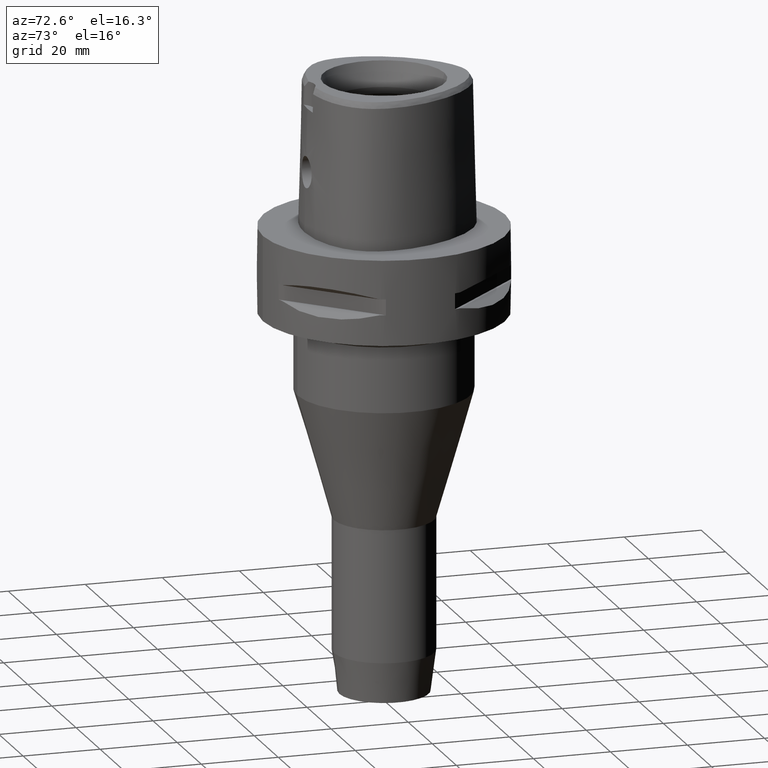
[diagram: clean part render]
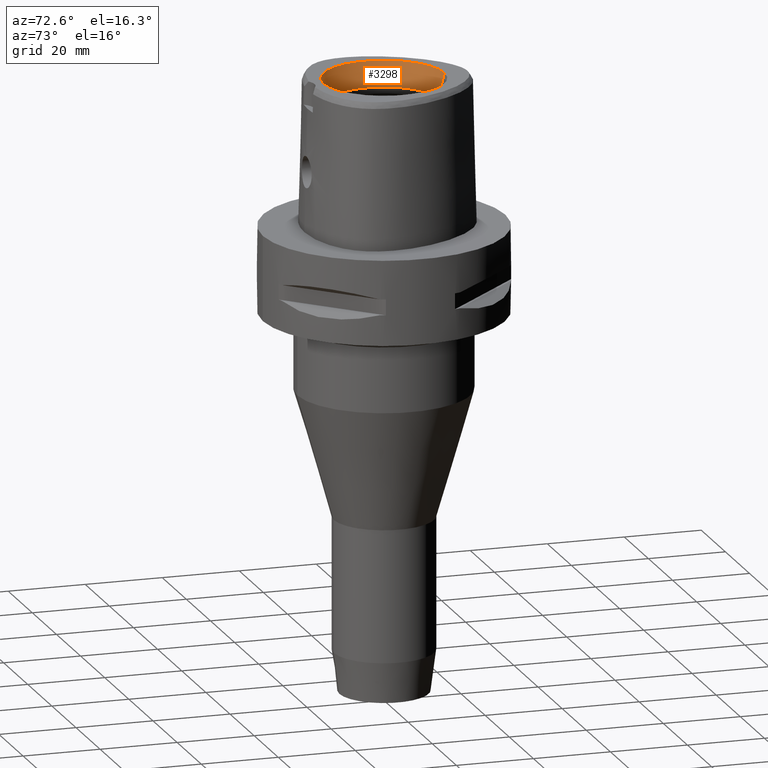
[diagram: same view with one face highlighted and labeled with its STEP entity id]
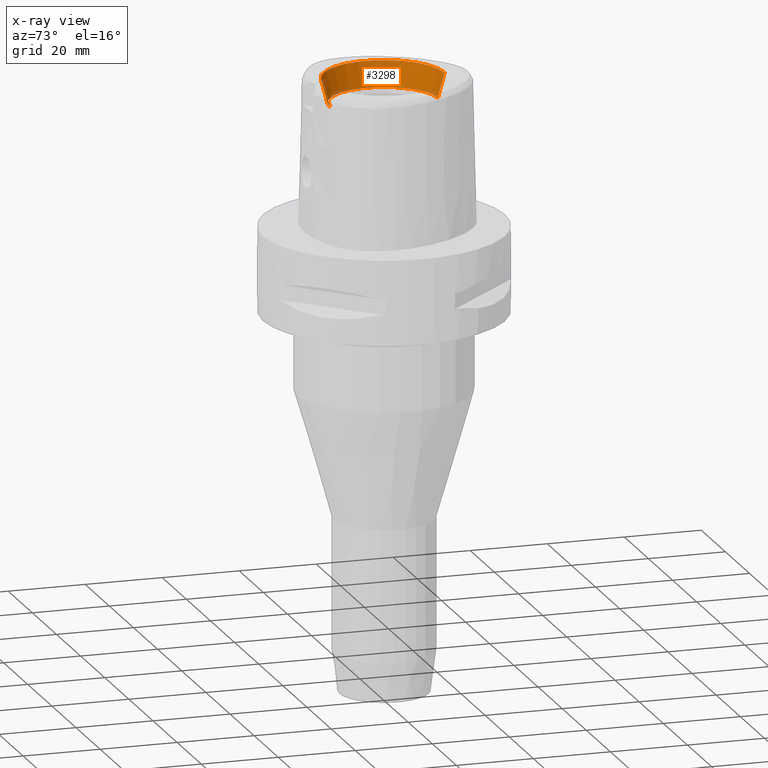
[diagram: x-ray of the same camera — body ghosted, the highlighted face saturated]
A machine part, auxiliary view. The second image highlights one B-rep face of the part: STEP entity #3298.
The next image is the same camera in x-ray: the body ghosted, the highlighted face saturated — about 2% of this face is hidden behind the body in this view.
In plain terms, the highlighted conical surface has half-angle 15 deg.
Its self-contained STEP definition (entity closure, byte-faithful):
#116=CARTESIAN_POINT('',(0.E0,0.E0,3.8E1));
#117=DIRECTION('',(0.E0,0.E0,1.E0));
#118=DIRECTION('',(0.E0,1.E0,0.E0));
#119=AXIS2_PLACEMENT_3D('',#116,#117,#118);
#1296=CARTESIAN_POINT('',(0.E0,0.E0,3.16E1));
#1297=DIRECTION('',(0.E0,0.E0,1.E0));
#1298=DIRECTION('',(0.E0,1.E0,0.E0));
#1299=AXIS2_PLACEMENT_3D('',#1296,#1297,#1298);
#1304=DIRECTION('',(0.E0,-2.588190451026E-1,9.659258262891E-1));
#1305=VECTOR('',#1304,6.625767554625E0);
#1306=CARTESIAN_POINT('',(0.E0,-1.4E1,3.16E1));
#1307=LINE('',#1306,#1305);
#1319=DIRECTION('',(0.E0,2.588190451026E-1,9.659258262891E-1));
#1320=VECTOR('',#1319,6.625767554625E0);
#1321=CARTESIAN_POINT('',(0.E0,1.4E1,3.16E1));
#1322=LINE('',#1321,#1320);
#1589=CARTESIAN_POINT('',(0.E0,1.571487483156E1,3.8E1));
#1590=CARTESIAN_POINT('',(0.E0,-1.571487483156E1,3.8E1));
#1591=VERTEX_POINT('',#1589);
#1592=VERTEX_POINT('',#1590);
#1761=CARTESIAN_POINT('',(0.E0,-1.4E1,3.16E1));
#1762=VERTEX_POINT('',#1761);
#1763=CARTESIAN_POINT('',(0.E0,1.4E1,3.16E1));
#1764=VERTEX_POINT('',#1763);
#3285=CARTESIAN_POINT('',(0.E0,0.E0,3.48E1));
#3286=DIRECTION('',(0.E0,0.E0,1.E0));
#3287=DIRECTION('',(0.E0,1.E0,0.E0));
#3288=AXIS2_PLACEMENT_3D('',#3285,#3286,#3287);
#3289=CONICAL_SURFACE('',#3288,1.485743741578E1,1.5E1);
#3290=ORIENTED_EDGE('',*,*,#1780,.F.);
#3292=ORIENTED_EDGE('',*,*,#3291,.F.);
#3293=ORIENTED_EDGE('',*,*,#3278,.T.);
#3295=ORIENTED_EDGE('',*,*,#3294,.T.);
#3296=EDGE_LOOP('',(#3290,#3292,#3293,#3295));
#3297=FACE_OUTER_BOUND('',#3296,.F.);
#120=CIRCLE('',#119,1.571487483156E1);
#1300=CIRCLE('',#1299,1.4E1);
#1780=EDGE_CURVE('',#1591,#1592,#120,.T.);
#3278=EDGE_CURVE('',#1764,#1762,#1300,.T.);
#3291=EDGE_CURVE('',#1764,#1591,#1322,.T.);
#3294=EDGE_CURVE('',#1762,#1592,#1307,.T.);
#3298=ADVANCED_FACE('',(#3297),#3289,.F.);